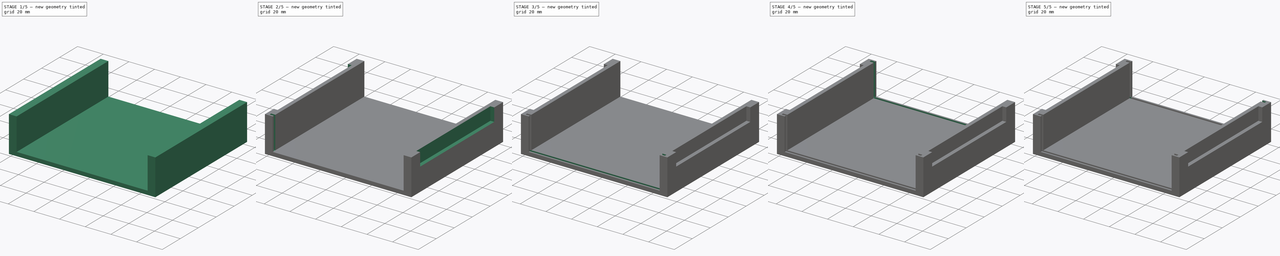
[diagram: build sequence overview — one tinted view per stage of 5, left to right]
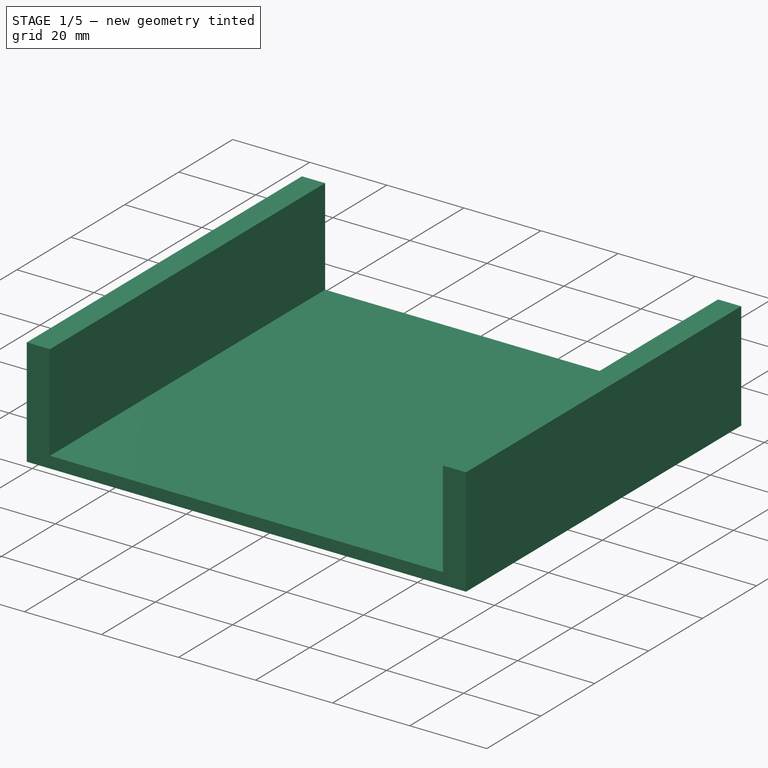
[diagram: stage 1 of 5 — iso view after this stage's code; geometry added in this stage tinted green]
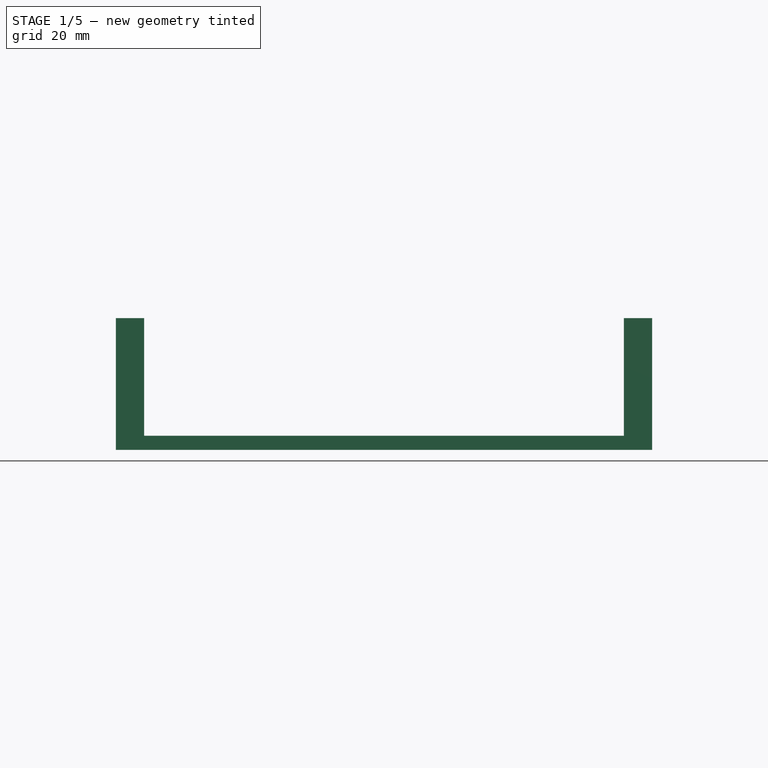
[diagram: stage 1 of 5 — front view after this stage's code; geometry added in this stage tinted green]
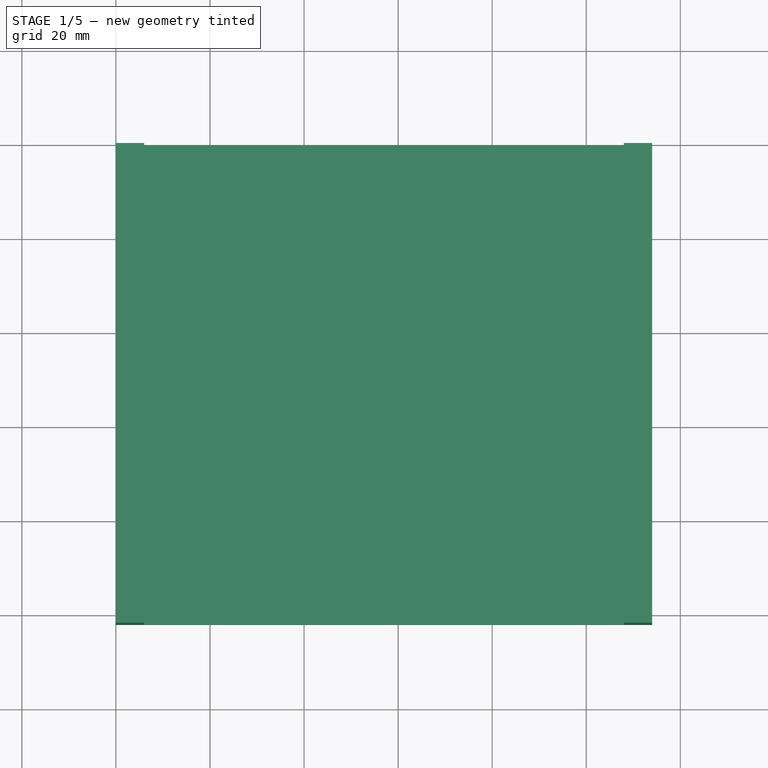
[diagram: stage 1 of 5 — top view after this stage's code; geometry added in this stage tinted green]
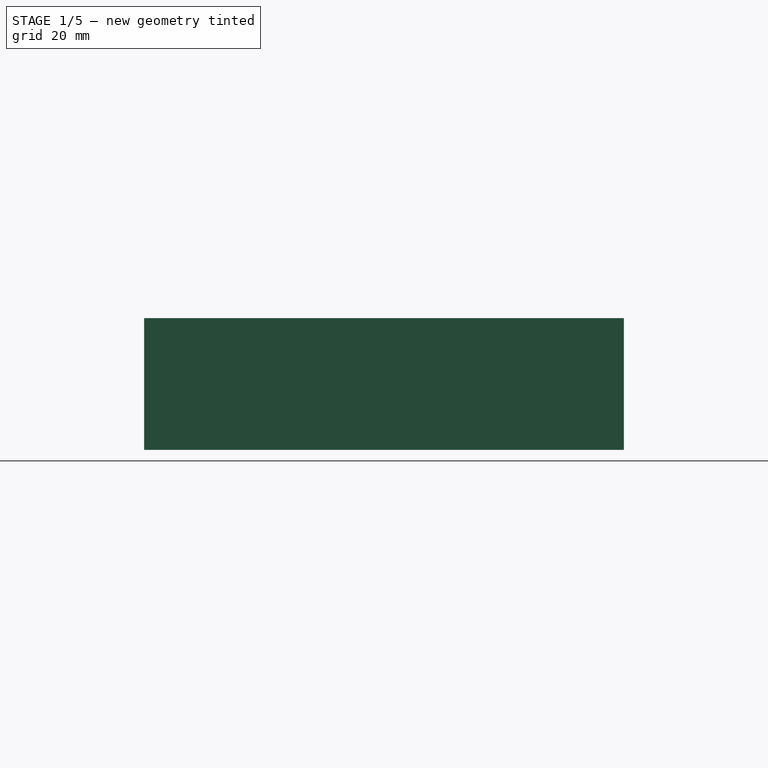
[diagram: stage 1 of 5 — right view after this stage's code; geometry added in this stage tinted green]
FCSTD DOCUMENT  (FreeCAD 0.21R33771 (Git))
Label: PP113_case_top
License: All rights reserved
LicenseURL: http://en.wikipedia.org/wiki/All_rights_reserved
objects: Sketcher::SketchObject×16, PartDesign::Pocket×12, PartDesign::Pad×3, PartDesign::Body×1
note: 47 computed .brp shape members not serialized (recipe doc carries the construction recipe); baked Part::Feature solids carry a one-line shape summary decoded from their .brp

FEATURE [Sketcher::SketchObject] Sketch
  FullyConstrained = true
  MapMode = 5
  Support = -> [XY_Plane]
  sketch-geometry (4):
    g0: LineSegment StartX=0 StartY=0 StartZ=0 EndX=114 EndY=0 EndZ=0
    g1: LineSegment StartX=114 StartY=0 StartZ=0 EndX=114 EndY=-102 EndZ=0
    g2: LineSegment StartX=114 StartY=-102 StartZ=0 EndX=0 EndY=-102 EndZ=0
    g3: LineSegment StartX=0 StartY=-102 StartZ=0 EndX=0 EndY=0 EndZ=0
  constraints (11):
    c: Coincident(g0,g1)
    c: Coincident(g1,g2)
    c: Coincident(g2,g3)
    c: Coincident(g3,g0)
    c: Horizontal(g0)
    c: Horizontal(g2)
    c: Vertical(g1)
    c: Vertical(g3)
    c: Distance(g0) = 114
    c: Distance(g3) = 102
    c: Coincident(g-1,g0)
FEATURE [PartDesign::Pad] Pad
  Direction = (0,0,1)
  Length = 3
  Length2 = 10
  Profile = -> Sketch
  ReferenceAxis = -> Sketch [N_Axis]
  Type = 0
FEATURE [Sketcher::SketchObject] Sketch001
  FullyConstrained = true
  MapMode = 5
  Placement = pos=(0,0,3) rot=(0,0,1;0rad)
  Support = -> [Pad]
  sketch-geometry (4):
    g0: LineSegment StartX=0 StartY=0 StartZ=0 EndX=6 EndY=0 EndZ=0
    g1: LineSegment StartX=6 StartY=0 StartZ=0 EndX=6 EndY=-102 EndZ=0
    g2: LineSegment StartX=6 StartY=-102 StartZ=0 EndX=0 EndY=-102 EndZ=0
    g3: LineSegment StartX=0 StartY=-102 StartZ=0 EndX=0 EndY=0 EndZ=0
  constraints (11):
    c: Coincident(g0,g1)
    c: Coincident(g1,g2)
    c: Coincident(g2,g3)
    c: Coincident(g3,g0)
    c: Horizontal(g0)
    c: Horizontal(g2)
    c: Vertical(g1)
    c: Vertical(g3)
    c: Coincident(g0,g-1)
    c: Distance(g1) = 102
    c: Distance(g2) = 6
FEATURE [PartDesign::Pad] Pad001
  BaseFeature = -> Pad
  Direction = (0,0,1)
  Length = 25
  Length2 = 10
  Profile = -> Sketch001
  ReferenceAxis = -> Sketch001 [N_Axis]
  Type = 0
FEATURE [Sketcher::SketchObject] Sketch002
  FullyConstrained = true
  MapMode = 5
  Placement = pos=(0,0,3) rot=(0,0,1;0rad)
  Support = -> [Pad001]
  sketch-geometry (5):
    g0: GeomPoint X=108 Y=0 Z=0
    g1: LineSegment StartX=108 StartY=0 StartZ=0 EndX=114 EndY=0 EndZ=0
    g2: LineSegment StartX=114 StartY=0 StartZ=0 EndX=114 EndY=-102 EndZ=0
    g3: LineSegment StartX=114 StartY=-102 StartZ=0 EndX=108 EndY=-102 EndZ=0
    g4: LineSegment StartX=108 StartY=-102 StartZ=0 EndX=108 EndY=0 EndZ=0
  constraints (13):
    c: DistanceY(g0) = 0
    c: DistanceX(g0) = 108
    c: Coincident(g1,g2)
    c: Coincident(g2,g3)
    c: Coincident(g3,g4)
    c: Coincident(g4,g1)
    c: Horizontal(g1)
    c: Horizontal(g3)
    c: Vertical(g2)
    c: Vertical(g4)
    c: Coincident(g1,g0)
    c: Distance(g3) = 6
    c: Distance(g4) = 102
FEATURE [PartDesign::Pad] Pad002
  BaseFeature = -> Pad001
  Direction = (0,0,1)
  Length = 25
  Length2 = 10
  Profile = -> Sketch002
  ReferenceAxis = -> Sketch002 [N_Axis]
  Type = 0
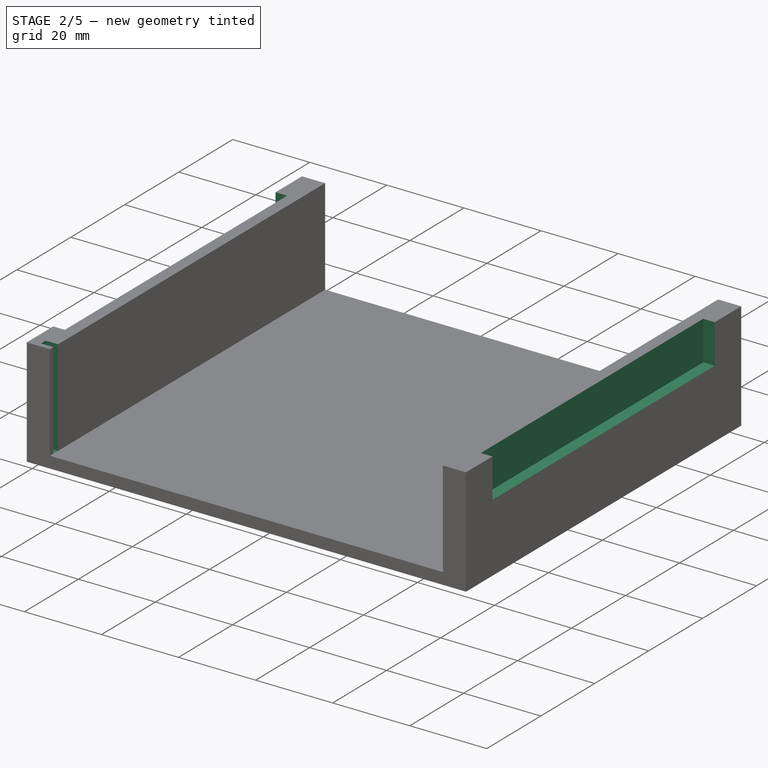
[diagram: stage 2 of 5 — iso view after this stage's code; geometry added in this stage tinted green]
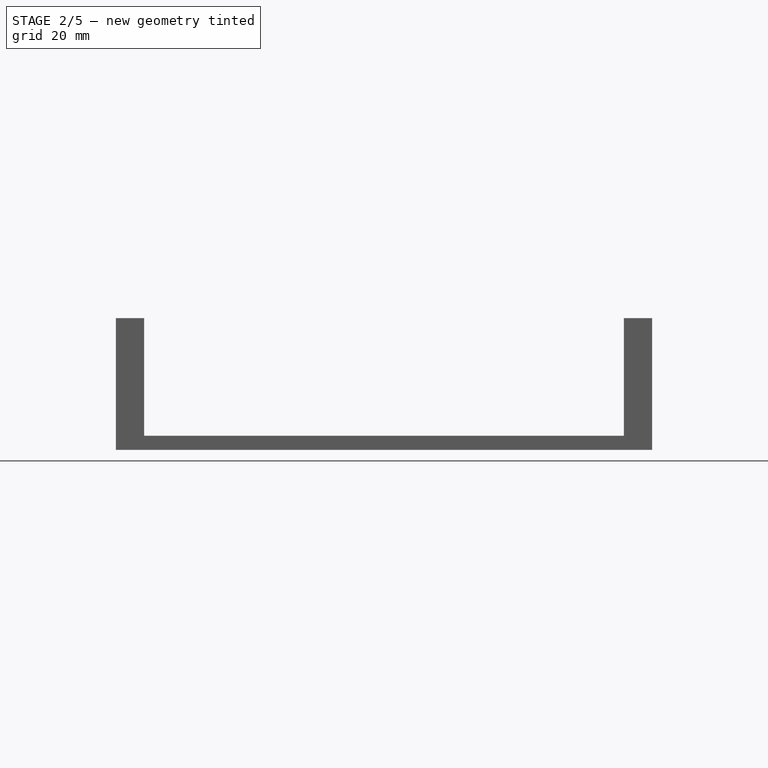
[diagram: stage 2 of 5 — front view after this stage's code; geometry added in this stage tinted green]
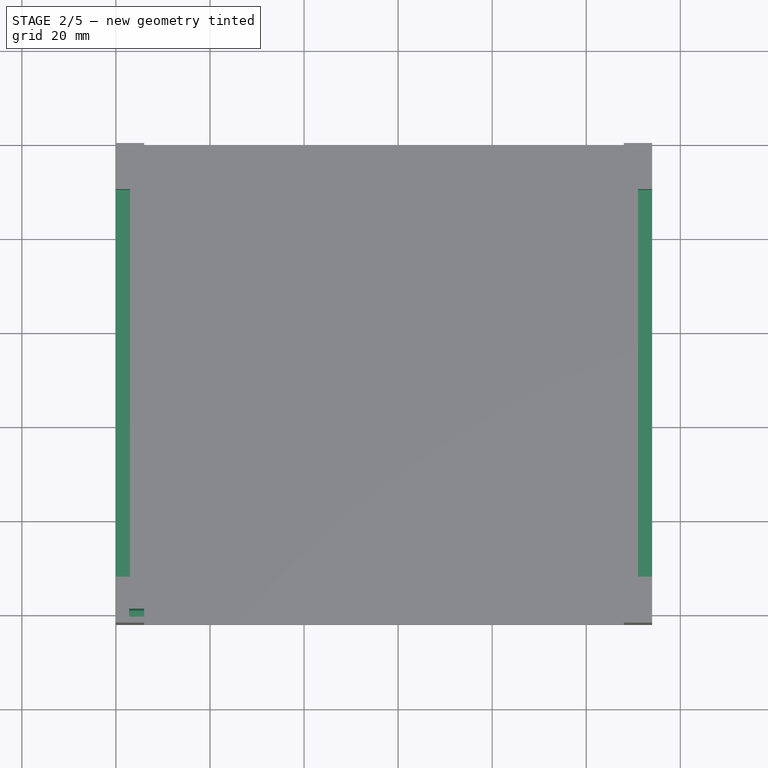
[diagram: stage 2 of 5 — top view after this stage's code; geometry added in this stage tinted green]
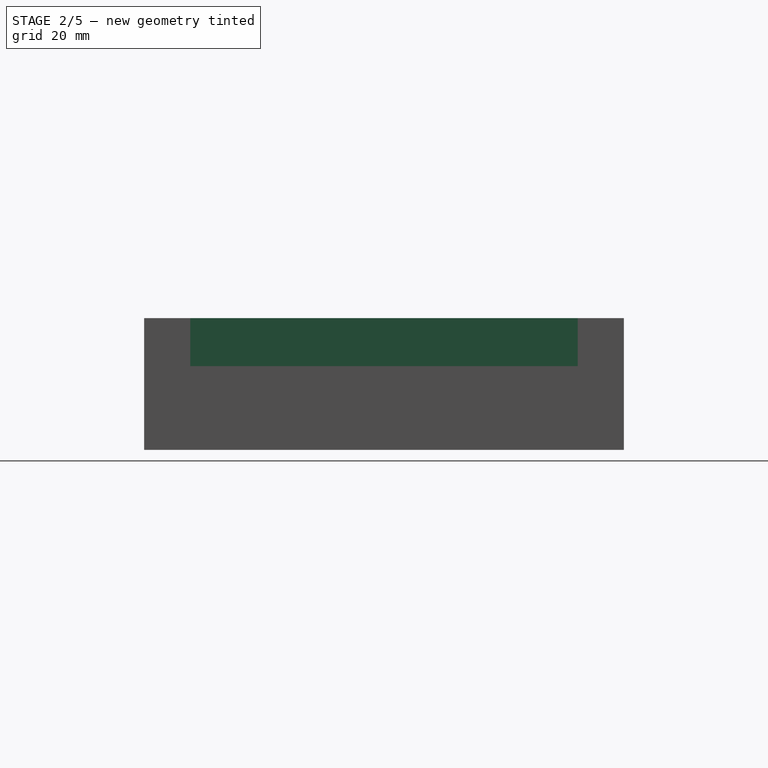
[diagram: stage 2 of 5 — right view after this stage's code; geometry added in this stage tinted green]
FEATURE [Sketcher::SketchObject] Sketch003
  FullyConstrained = true
  MapMode = 5
  Placement = pos=(114,0,0) rot=(0.57735,0.57735,0.57735;2.0944rad)
  Support = -> [Pad002]
  sketch-geometry (5):
    g0: GeomPoint X=-92.2 Y=28 Z=0
    g1: LineSegment StartX=-92.2 StartY=28 StartZ=0 EndX=-9.8 EndY=28 EndZ=0
    g2: LineSegment StartX=-9.8 StartY=28 StartZ=0 EndX=-9.8 EndY=17.8 EndZ=0
    g3: LineSegment StartX=-9.8 StartY=17.8 StartZ=0 EndX=-92.2 EndY=17.8 EndZ=0
    g4: LineSegment StartX=-92.2 StartY=17.8 StartZ=0 EndX=-92.2 EndY=28 EndZ=0
  constraints (13):
    c: DistanceY(g0) = 28
    c: DistanceX(g0) = -92.2
    c: Coincident(g1,g2)
    c: Coincident(g2,g3)
    c: Coincident(g3,g4)
    c: Coincident(g4,g1)
    c: Horizontal(g1)
    c: Horizontal(g3)
    c: Vertical(g2)
    c: Vertical(g4)
    c: Coincident(g1,g0)
    c: Distance(g2) = 10.2
    c: Distance(g1) = 82.4
FEATURE [PartDesign::Pocket] Pocket
  BaseFeature = -> Pad002
  Direction = (-1,0,0)
  Length = 3
  Length2 = 5
  Profile = -> Sketch003
  ReferenceAxis = -> Sketch003 [N_Axis]
  Type = 0
FEATURE [Sketcher::SketchObject] Sketch004
  FullyConstrained = true
  MapMode = 5
  Placement = pos=(0,0,0) rot=(0.57735,-0.57735,-0.57735;2.0944rad)
  Support = -> [Pocket]
  sketch-geometry (5):
    g0: GeomPoint X=9.8 Y=28 Z=0
    g1: LineSegment StartX=9.8 StartY=28 StartZ=0 EndX=92.2 EndY=28 EndZ=0
    g2: LineSegment StartX=92.2 StartY=28 StartZ=0 EndX=92.2 EndY=17.8 EndZ=0
    g3: LineSegment StartX=92.2 StartY=17.8 StartZ=0 EndX=9.8 EndY=17.8 EndZ=0
    g4: LineSegment StartX=9.8 StartY=17.8 StartZ=0 EndX=9.8 EndY=28 EndZ=0
  constraints (13):
    c: DistanceY(g0) = 28
    c: DistanceX(g0) = 9.8
    c: Coincident(g1,g2)
    c: Coincident(g2,g3)
    c: Coincident(g3,g4)
    c: Coincident(g4,g1)
    c: Horizontal(g1)
    c: Horizontal(g3)
    c: Vertical(g2)
    c: Vertical(g4)
    c: Coincident(g1,g0)
    c: Distance(g4) = 10.2
    c: Distance(g3) = 82.4
FEATURE [PartDesign::Pocket] Pocket001
  BaseFeature = -> Pocket
  Direction = (1,0,0)
  Length = 3
  Length2 = 5
  Profile = -> Sketch004
  ReferenceAxis = -> Sketch004 [N_Axis]
  Type = 0
FEATURE [Sketcher::SketchObject] Sketch005
  FullyConstrained = true
  MapMode = 5
  Placement = pos=(6,0,0) rot=(0.57735,0.57735,0.57735;2.0944rad)
  Support = -> [Pocket001]
  sketch-geometry (5):
    g0: GeomPoint X=-100.7 Y=3 Z=0
    g1: LineSegment StartX=-100.7 StartY=3 StartZ=0 EndX=-99 EndY=3 EndZ=0
    g2: LineSegment StartX=-99 StartY=3 StartZ=0 EndX=-99 EndY=28 EndZ=0
    g3: LineSegment StartX=-99 StartY=28 StartZ=0 EndX=-100.7 EndY=28 EndZ=0
    g4: LineSegment StartX=-100.7 StartY=28 StartZ=0 EndX=-100.7 EndY=3 EndZ=0
  constraints (13):
    c: DistanceY(g0) = 3
    c: DistanceX(g0) = -100.7
    c: Coincident(g1,g2)
    c: Coincident(g2,g3)
    c: Coincident(g3,g4)
    c: Coincident(g4,g1)
    c: Horizontal(g1)
    c: Horizontal(g3)
    c: Vertical(g2)
    c: Vertical(g4)
    c: Coincident(g1,g0)
    c: Distance(g4) = 25
    c: Distance(g1) = 1.7
FEATURE [PartDesign::Pocket] Pocket002
  BaseFeature = -> Pocket001
  Direction = (-1,0,0)
  Length = 3.2
  Length2 = 5
  Profile = -> Sketch005
  ReferenceAxis = -> Sketch005 [N_Axis]
  Type = 0
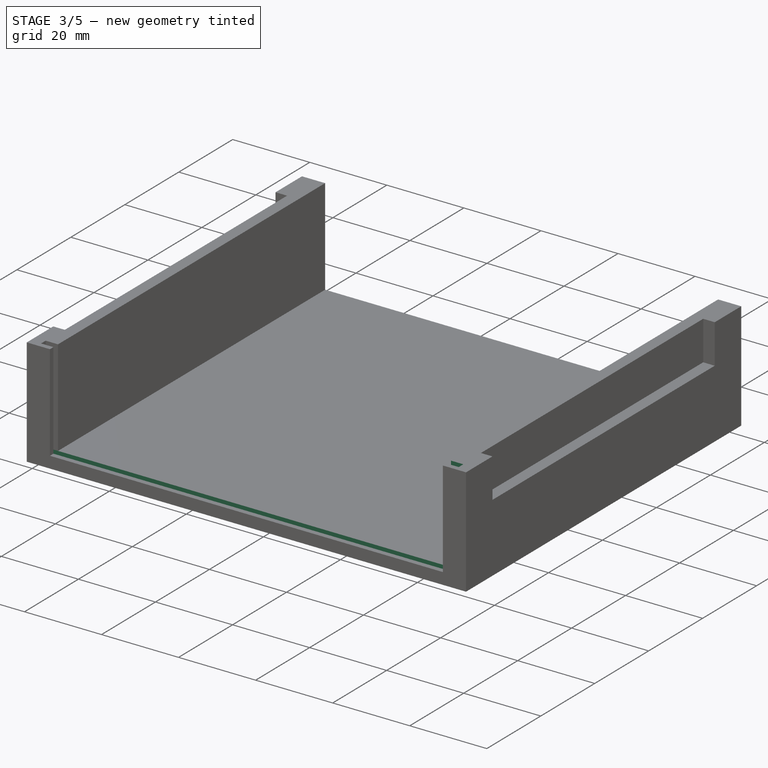
[diagram: stage 3 of 5 — iso view after this stage's code; geometry added in this stage tinted green]
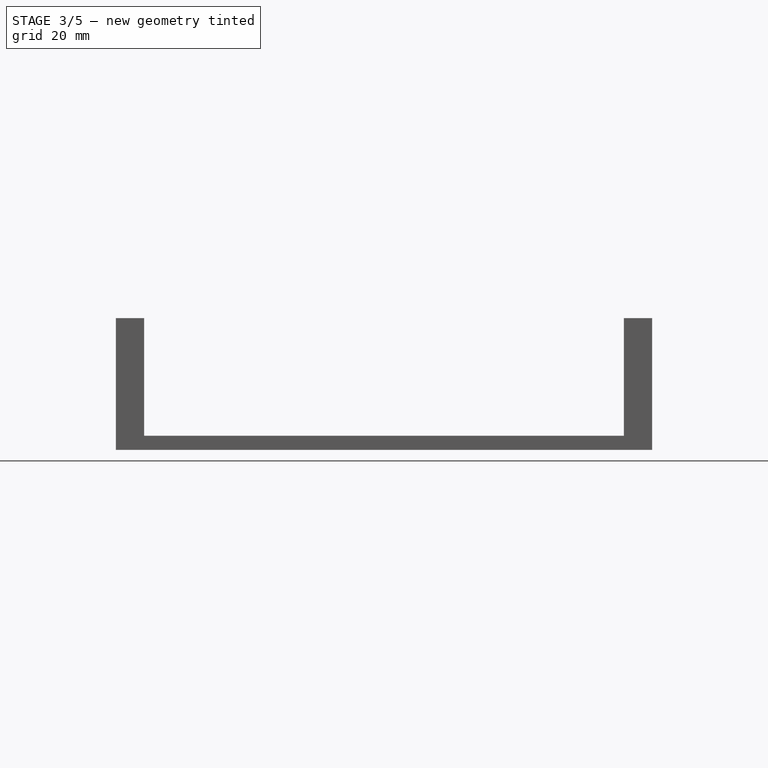
[diagram: stage 3 of 5 — front view after this stage's code; geometry added in this stage tinted green]
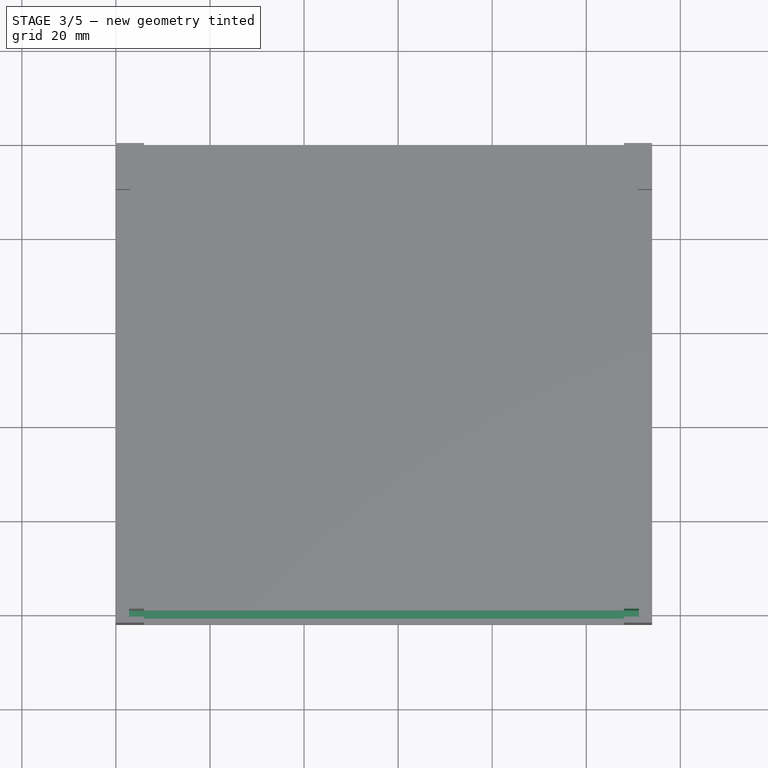
[diagram: stage 3 of 5 — top view after this stage's code; geometry added in this stage tinted green]
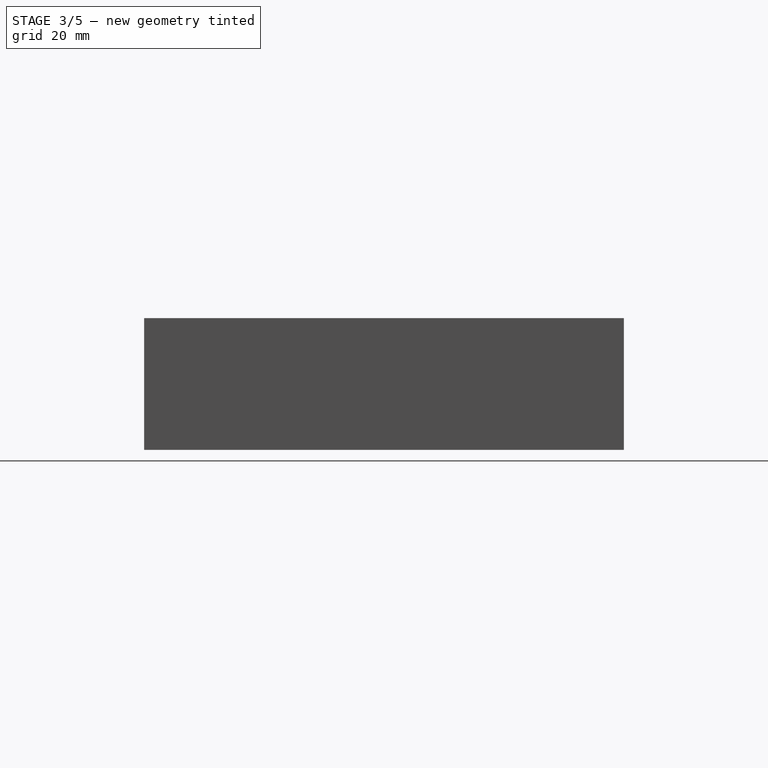
[diagram: stage 3 of 5 — right view after this stage's code; geometry added in this stage tinted green]
FEATURE [Sketcher::SketchObject] Sketch006
  FullyConstrained = true
  MapMode = 5
  Placement = pos=(0,0,3) rot=(0,0,1;0rad)
  Support = -> [Pocket002]
  sketch-geometry (5):
    g0: GeomPoint X=6 Y=-99 Z=0
    g1: LineSegment StartX=6 StartY=-99 StartZ=0 EndX=108 EndY=-99 EndZ=0
    g2: LineSegment StartX=108 StartY=-99 StartZ=0 EndX=108 EndY=-100.7 EndZ=0
    g3: LineSegment StartX=108 StartY=-100.7 StartZ=0 EndX=6 EndY=-100.7 EndZ=0
    g4: LineSegment StartX=6 StartY=-100.7 StartZ=0 EndX=6 EndY=-99 EndZ=0
  constraints (13):
    c: DistanceX(g0) = 6
    c: DistanceY(g0) = -99
    c: Coincident(g1,g2)
    c: Coincident(g2,g3)
    c: Coincident(g3,g4)
    c: Coincident(g4,g1)
    c: Horizontal(g1)
    c: Horizontal(g3)
    c: Vertical(g2)
    c: Vertical(g4)
    c: Coincident(g1,g0)
    c: Distance(g2) = 1.7
    c: Distance(g1) = 102
FEATURE [PartDesign::Pocket] Pocket003
  BaseFeature = -> Pocket002
  Direction = (0,0,-1)
  Length = 1.6
  Length2 = 5
  Profile = -> Sketch006
  ReferenceAxis = -> Sketch006 [N_Axis]
  Type = 0
FEATURE [Sketcher::SketchObject] Sketch007
  FullyConstrained = true
  MapMode = 5
  Placement = pos=(0,0,3) rot=(0,0,1;0rad)
  Support = -> [Pocket003]
  sketch-geometry (5):
    g0: GeomPoint X=6 Y=-99 Z=0
    g1: LineSegment StartX=6 StartY=-99 StartZ=0 EndX=2.8 EndY=-99 EndZ=0
    g2: LineSegment StartX=2.8 StartY=-99 StartZ=0 EndX=2.8 EndY=-100.7 EndZ=0
    g3: LineSegment StartX=2.8 StartY=-100.7 StartZ=0 EndX=6 EndY=-100.7 EndZ=0
    g4: LineSegment StartX=6 StartY=-100.7 StartZ=0 EndX=6 EndY=-99 EndZ=0
  constraints (13):
    c: DistanceX(g0) = 6
    c: DistanceY(g0) = -99
    c: Coincident(g1,g2)
    c: Coincident(g2,g3)
    c: Coincident(g3,g4)
    c: Coincident(g4,g1)
    c: Horizontal(g1)
    c: Horizontal(g3)
    c: Vertical(g2)
    c: Vertical(g4)
    c: Coincident(g1,g0)
    c: Distance(g1) = 3.2
    c: Distance(g2) = 1.7
FEATURE [PartDesign::Pocket] Pocket004
  BaseFeature = -> Pocket003
  Direction = (0,0,-1)
  Length = 1.6
  Length2 = 5
  Profile = -> Sketch007
  ReferenceAxis = -> Sketch007 [N_Axis]
  Type = 0
FEATURE [Sketcher::SketchObject] Sketch008
  FullyConstrained = true
  MapMode = 5
  Placement = pos=(108,0,0) rot=(0.57735,-0.57735,-0.57735;2.0944rad)
  Support = -> [Pocket004]
  sketch-geometry (5):
    g0: GeomPoint X=99 Y=3 Z=0
    g1: LineSegment StartX=99 StartY=3 StartZ=0 EndX=100.7 EndY=3 EndZ=0
    g2: LineSegment StartX=100.7 StartY=3 StartZ=0 EndX=100.7 EndY=28 EndZ=0
    g3: LineSegment StartX=100.7 StartY=28 StartZ=0 EndX=99 EndY=28 EndZ=0
    g4: LineSegment StartX=99 StartY=28 StartZ=0 EndX=99 EndY=3 EndZ=0
  constraints (13):
    c: DistanceY(g0) = 3
    c: DistanceX(g0) = 99
    c: Coincident(g1,g2)
    c: Coincident(g2,g3)
    c: Coincident(g3,g4)
    c: Coincident(g4,g1)
    c: Horizontal(g1)
    c: Horizontal(g3)
    c: Vertical(g2)
    c: Vertical(g4)
    c: Coincident(g1,g0)
    c: Distance(g2) = 25
    c: Distance(g1) = 1.7
FEATURE [PartDesign::Pocket] Pocket005
  BaseFeature = -> Pocket004
  Direction = (1,0,0)
  Length = 3.2
  Length2 = 5
  Profile = -> Sketch008
  ReferenceAxis = -> Sketch008 [N_Axis]
  Type = 0
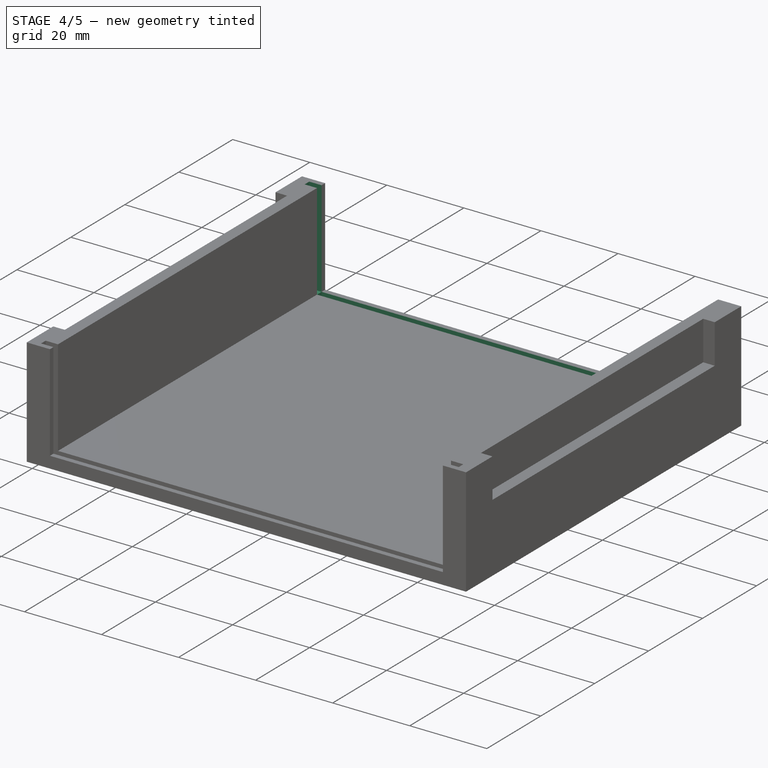
[diagram: stage 4 of 5 — iso view after this stage's code; geometry added in this stage tinted green]
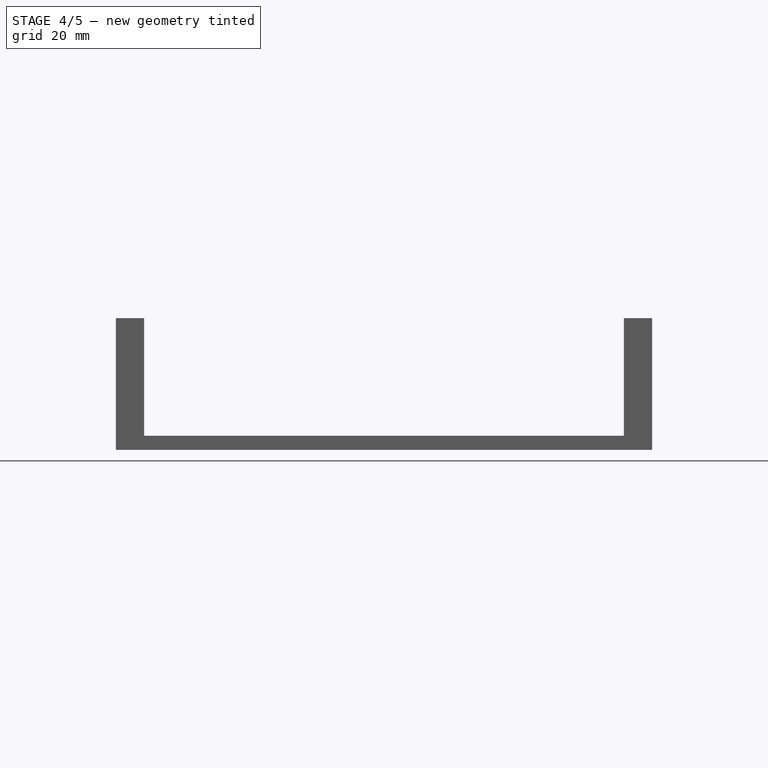
[diagram: stage 4 of 5 — front view after this stage's code; geometry added in this stage tinted green]
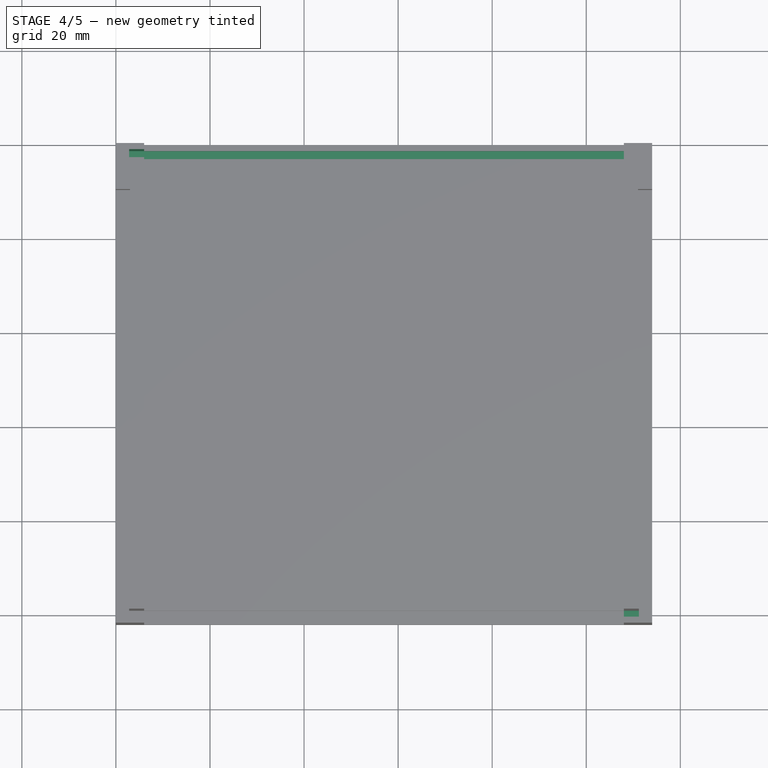
[diagram: stage 4 of 5 — top view after this stage's code; geometry added in this stage tinted green]
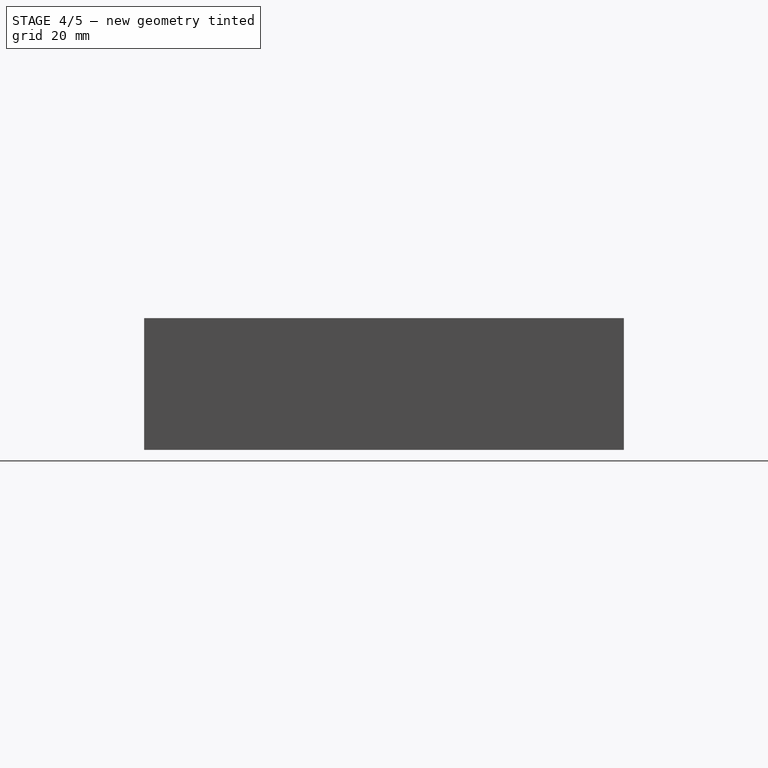
[diagram: stage 4 of 5 — right view after this stage's code; geometry added in this stage tinted green]
FEATURE [Sketcher::SketchObject] Sketch009
  FullyConstrained = true
  MapMode = 5
  Placement = pos=(0,0,3) rot=(0,0,1;0rad)
  Support = -> [Pocket005]
FEATURE [Sketcher::SketchObject] Sketch010
  FullyConstrained = true
  MapMode = 5
  Placement = pos=(0,0,3) rot=(0,0,1;0rad)
  Support = -> [Pocket005]
  sketch-geometry (5):
    g0: GeomPoint X=108 Y=-99 Z=0
    g1: LineSegment StartX=108 StartY=-99 StartZ=0 EndX=111.2 EndY=-99 EndZ=0
    g2: LineSegment StartX=111.2 StartY=-99 StartZ=0 EndX=111.2 EndY=-100.7 EndZ=0
    g3: LineSegment StartX=111.2 StartY=-100.7 StartZ=0 EndX=108 EndY=-100.7 EndZ=0
    g4: LineSegment StartX=108 StartY=-100.7 StartZ=0 EndX=108 EndY=-99 EndZ=0
  constraints (13):
    c: DistanceY(g0) = -99
    c: DistanceX(g0) = 108
    c: Coincident(g1,g2)
    c: Coincident(g2,g3)
    c: Coincident(g3,g4)
    c: Coincident(g4,g1)
    c: Horizontal(g1)
    c: Horizontal(g3)
    c: Vertical(g2)
    c: Vertical(g4)
    c: Coincident(g1,g0)
    c: Distance(g3) = 3.2
    c: DistanceY(g4,g4) = 1.7
FEATURE [PartDesign::Pocket] Pocket006
  BaseFeature = -> Pocket005
  Direction = (0,0,-1)
  Length = 1.6
  Length2 = 5
  Profile = -> Sketch010
  ReferenceAxis = -> Sketch010 [N_Axis]
  Type = 0
FEATURE [Sketcher::SketchObject] Sketch011
  FullyConstrained = true
  MapMode = 5
  Placement = pos=(6,0,0) rot=(0.57735,0.57735,0.57735;2.0944rad)
  Support = -> [Pocket006]
  sketch-geometry (5):
    g0: GeomPoint X=-3 Y=3 Z=0
    g1: LineSegment StartX=-3 StartY=3 StartZ=0 EndX=-1.3 EndY=3 EndZ=0
    g2: LineSegment StartX=-1.3 StartY=3 StartZ=0 EndX=-1.3 EndY=28 EndZ=0
    g3: LineSegment StartX=-1.3 StartY=28 StartZ=0 EndX=-3 EndY=28 EndZ=0
    g4: LineSegment StartX=-3 StartY=28 StartZ=0 EndX=-3 EndY=3 EndZ=0
  constraints (13):
    c: DistanceY(g0) = 3
    c: DistanceX(g0) = -3
    c: Coincident(g1,g2)
    c: Coincident(g2,g3)
    c: Coincident(g3,g4)
    c: Coincident(g4,g1)
    c: Horizontal(g1)
    c: Horizontal(g3)
    c: Vertical(g2)
    c: Vertical(g4)
    c: Coincident(g1,g0)
    c: Distance(g2) = 25
    c: Distance(g1) = 1.7
FEATURE [PartDesign::Pocket] Pocket007
  BaseFeature = -> Pocket006
  Direction = (-1,0,0)
  Length = 3.2
  Length2 = 5
  Profile = -> Sketch011
  ReferenceAxis = -> Sketch011 [N_Axis]
  Type = 0
FEATURE [Sketcher::SketchObject] Sketch012
  FullyConstrained = true
  MapMode = 5
  Placement = pos=(0,0,3) rot=(0,0,1;0rad)
  Support = -> [Pocket007]
  sketch-geometry (5):
    g0: GeomPoint X=6 Y=-3 Z=0
    g1: LineSegment StartX=6 StartY=-3 StartZ=0 EndX=108 EndY=-3 EndZ=0
    g2: LineSegment StartX=108 StartY=-3 StartZ=0 EndX=108 EndY=-1.3 EndZ=0
    g3: LineSegment StartX=108 StartY=-1.3 StartZ=0 EndX=6 EndY=-1.3 EndZ=0
    g4: LineSegment StartX=6 StartY=-1.3 StartZ=0 EndX=6 EndY=-3 EndZ=0
  constraints (13):
    c: DistanceY(g0) = -3
    c: DistanceX(g0) = 6
    c: Coincident(g1,g2)
    c: Coincident(g2,g3)
    c: Coincident(g3,g4)
    c: Coincident(g4,g1)
    c: Horizontal(g1)
    c: Horizontal(g3)
    c: Vertical(g2)
    c: Vertical(g4)
    c: Coincident(g1,g0)
    c: Distance(g1) = 102
    c: Distance(g4) = 1.7
FEATURE [PartDesign::Pocket] Pocket008
  BaseFeature = -> Pocket007
  Direction = (0,0,-1)
  Length = 1.6
  Length2 = 5
  Profile = -> Sketch012
  ReferenceAxis = -> Sketch012 [N_Axis]
  Type = 0
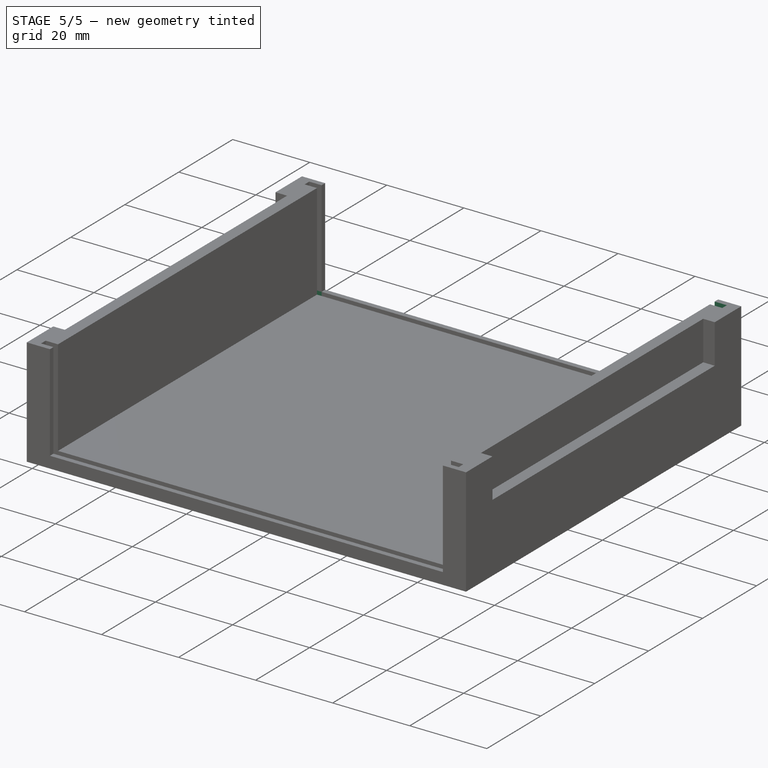
[diagram: stage 5 of 5 — iso view after this stage's code; geometry added in this stage tinted green]
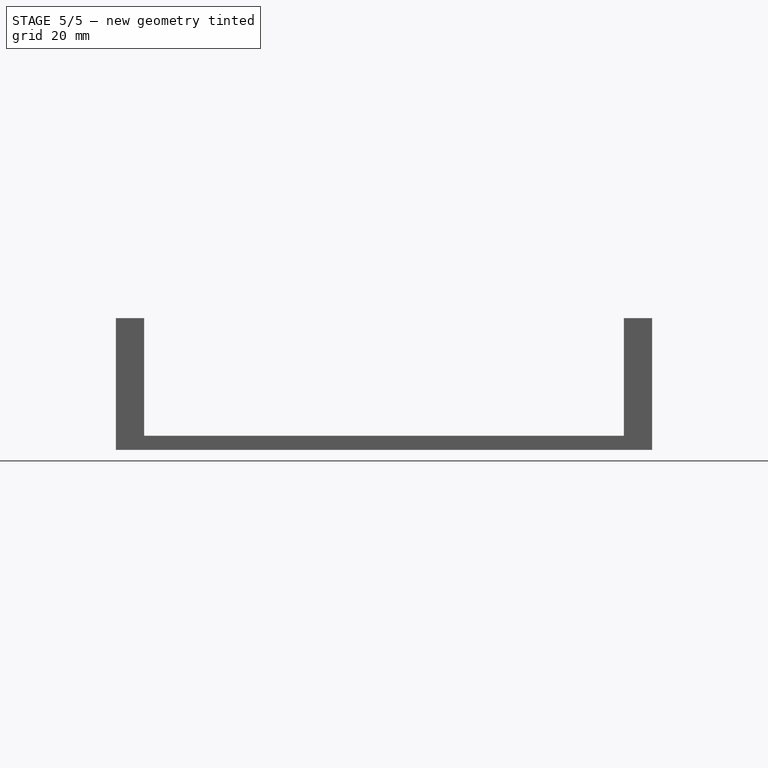
[diagram: stage 5 of 5 — front view after this stage's code; geometry added in this stage tinted green]
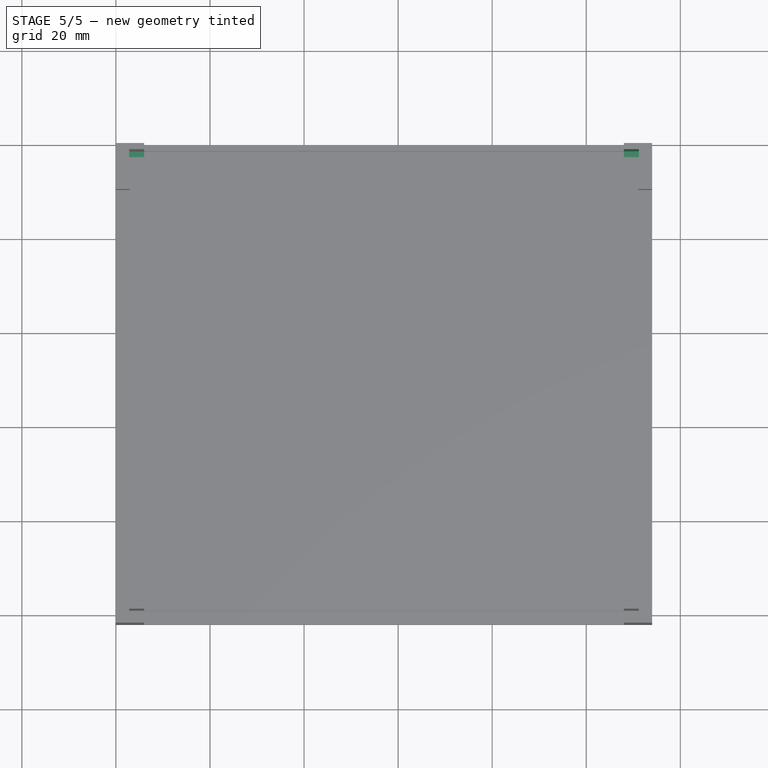
[diagram: stage 5 of 5 — top view after this stage's code; geometry added in this stage tinted green]
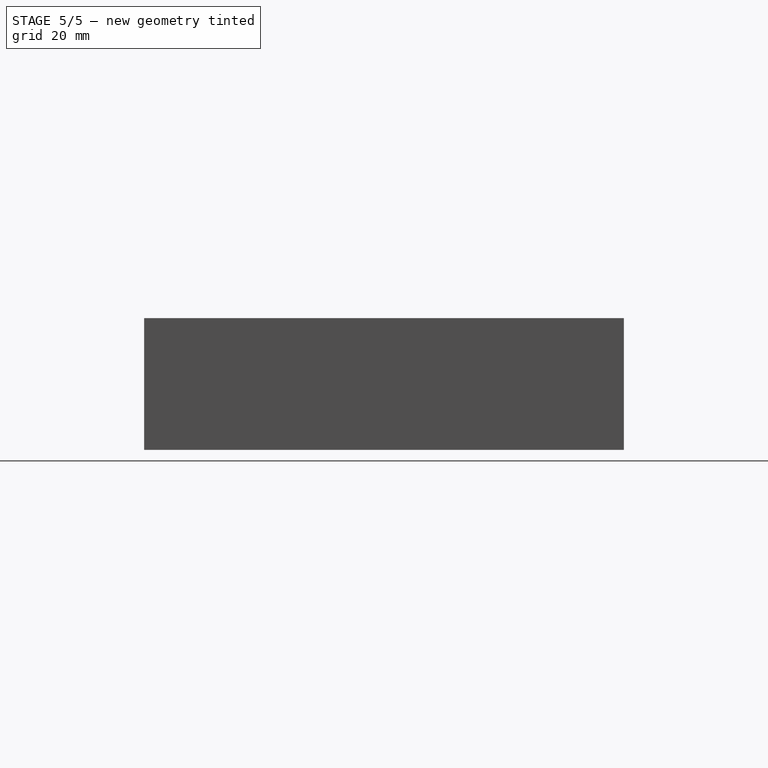
[diagram: stage 5 of 5 — right view after this stage's code; geometry added in this stage tinted green]
FEATURE [Sketcher::SketchObject] Sketch013
  FullyConstrained = true
  MapMode = 5
  Placement = pos=(0,0,3) rot=(0,0,1;0rad)
  Support = -> [Pocket008]
  sketch-geometry (5):
    g0: GeomPoint X=6 Y=-3 Z=0
    g1: LineSegment StartX=6 StartY=-3 StartZ=0 EndX=2.8 EndY=-3 EndZ=0
    g2: LineSegment StartX=2.8 StartY=-3 StartZ=0 EndX=2.8 EndY=-1.3 EndZ=0
    g3: LineSegment StartX=2.8 StartY=-1.3 StartZ=0 EndX=6 EndY=-1.3 EndZ=0
    g4: LineSegment StartX=6 StartY=-1.3 StartZ=0 EndX=6 EndY=-3 EndZ=0
  constraints (13):
    c: DistanceY(g0) = -3
    c: DistanceX(g0) = 6
    c: Coincident(g1,g2)
    c: Coincident(g2,g3)
    c: Coincident(g3,g4)
    c: Coincident(g4,g1)
    c: Horizontal(g1)
    c: Horizontal(g3)
    c: Vertical(g2)
    c: Vertical(g4)
    c: Coincident(g1,g0)
    c: Distance(g3) = 3.2
    c: Distance(g4) = 1.7
FEATURE [PartDesign::Pocket] Pocket009
  BaseFeature = -> Pocket008
  Direction = (0,0,-1)
  Length = 1.6
  Length2 = 5
  Profile = -> Sketch013
  ReferenceAxis = -> Sketch013 [N_Axis]
  Type = 0
FEATURE [Sketcher::SketchObject] Sketch014
  FullyConstrained = true
  MapMode = 5
  Placement = pos=(108,0,0) rot=(0.57735,-0.57735,-0.57735;2.0944rad)
  Support = -> [Pocket009]
  sketch-geometry (5):
    g0: GeomPoint X=3 Y=3 Z=0
    g1: LineSegment StartX=3 StartY=3 StartZ=0 EndX=1.3 EndY=3 EndZ=0
    g2: LineSegment StartX=1.3 StartY=3 StartZ=0 EndX=1.3 EndY=28 EndZ=0
    g3: LineSegment StartX=1.3 StartY=28 StartZ=0 EndX=3 EndY=28 EndZ=0
    g4: LineSegment StartX=3 StartY=28 StartZ=0 EndX=3 EndY=3 EndZ=0
  constraints (13):
    c: DistanceY(g0) = 3
    c: DistanceX(g0) = 3
    c: Coincident(g1,g2)
    c: Coincident(g2,g3)
    c: Coincident(g3,g4)
    c: Coincident(g4,g1)
    c: Horizontal(g1)
    c: Horizontal(g3)
    c: Vertical(g2)
    c: Vertical(g4)
    c: Coincident(g1,g0)
    c: Distance(g4) = 25
    c: Distance(g1) = 1.7
FEATURE [PartDesign::Pocket] Pocket010
  BaseFeature = -> Pocket009
  Direction = (1,0,0)
  Length = 3.2
  Length2 = 5
  Profile = -> Sketch014
  ReferenceAxis = -> Sketch014 [N_Axis]
  Type = 0
FEATURE [Sketcher::SketchObject] Sketch015
  FullyConstrained = true
  MapMode = 5
  Placement = pos=(0,0,3) rot=(0,0,1;0rad)
  Support = -> [Pocket010]
  sketch-geometry (5):
    g0: GeomPoint X=108 Y=-3 Z=0
    g1: LineSegment StartX=108 StartY=-3 StartZ=0 EndX=111.2 EndY=-3 EndZ=0
    g2: LineSegment StartX=111.2 StartY=-3 StartZ=0 EndX=111.2 EndY=-1.3 EndZ=0
    g3: LineSegment StartX=111.2 StartY=-1.3 StartZ=0 EndX=108 EndY=-1.3 EndZ=0
    g4: LineSegment StartX=108 StartY=-1.3 StartZ=0 EndX=108 EndY=-3 EndZ=0
  constraints (13):
    c: DistanceY(g0) = -3
    c: DistanceX(g0) = 108
    c: Coincident(g1,g2)
    c: Coincident(g2,g3)
    c: Coincident(g3,g4)
    c: Coincident(g4,g1)
    c: Horizontal(g1)
    c: Horizontal(g3)
    c: Vertical(g2)
    c: Vertical(g4)
    c: Coincident(g1,g0)
    c: Distance(g2) = 1.7
    c: Distance(g1) = 3.2
FEATURE [PartDesign::Pocket] Pocket011
  BaseFeature = -> Pocket010
  Direction = (0,0,-1)
  Length = 1.6
  Length2 = 5
  Profile = -> Sketch015
  ReferenceAxis = -> Sketch015 [N_Axis]
  Type = 0
FEATURE [PartDesign::Body] Body  label="Lichaam"
  Group = -> [Sketch,Pad,Sketch001,Pad001,Sketch002,Pad002,Sketch003,Pocket,Sketch004,Pocket001,Sketch005,Pocket002,Sketch006,Pocket003,Sketch007,Pocket004,Sketch008,Pocket005,Sketch009,Sketch010,Pocket006,Sketch011,Pocket007,Sketch012,Pocket008,Sketch013,Pocket009,Sketch014,Pocket010,Sketch015,Pocket011]
  Origin = -> Origin
  Tip = -> Pocket011
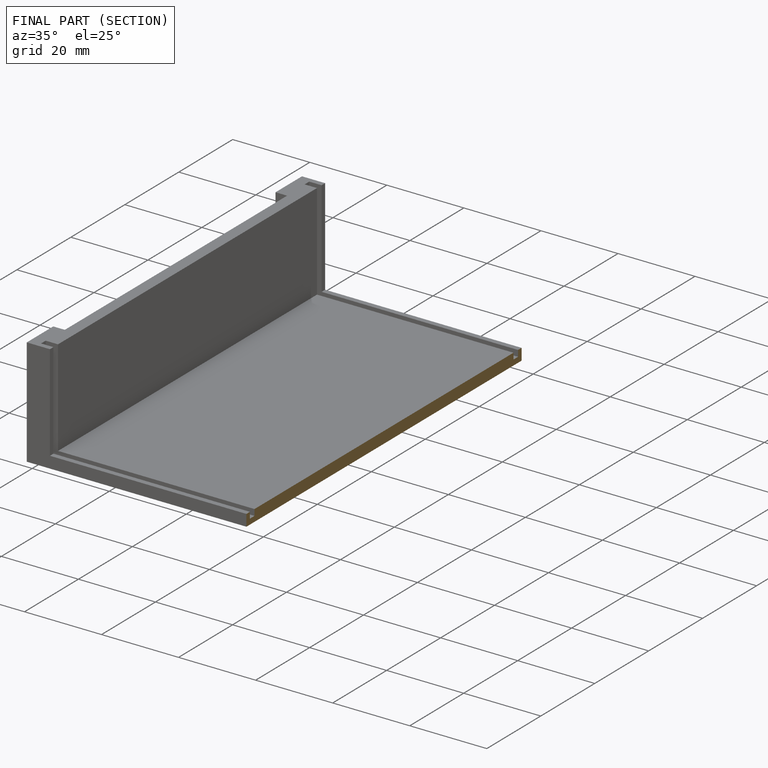
[diagram: finished part — half-section view (interior)]
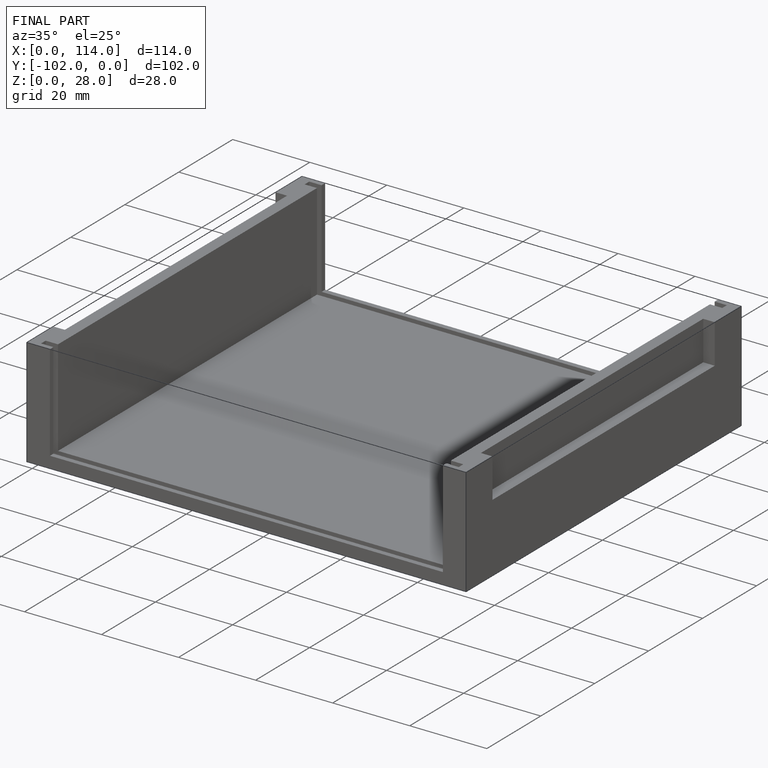
[diagram: finished part — iso view with bounding-box wireframe]
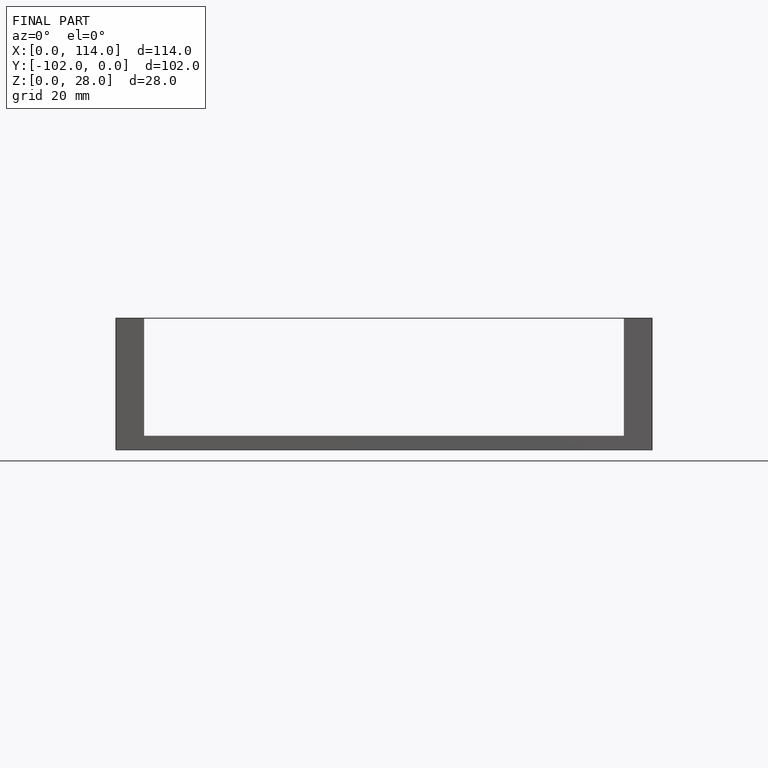
[diagram: finished part — front view with bounding-box wireframe]
